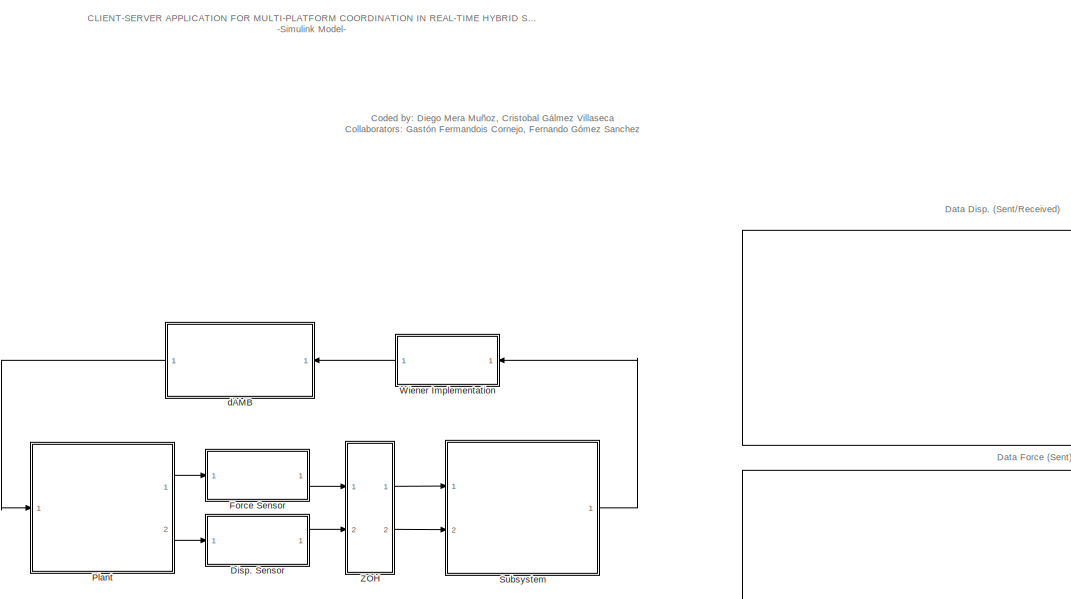
[diagram: root canvas - part 1/2, left side, full height]
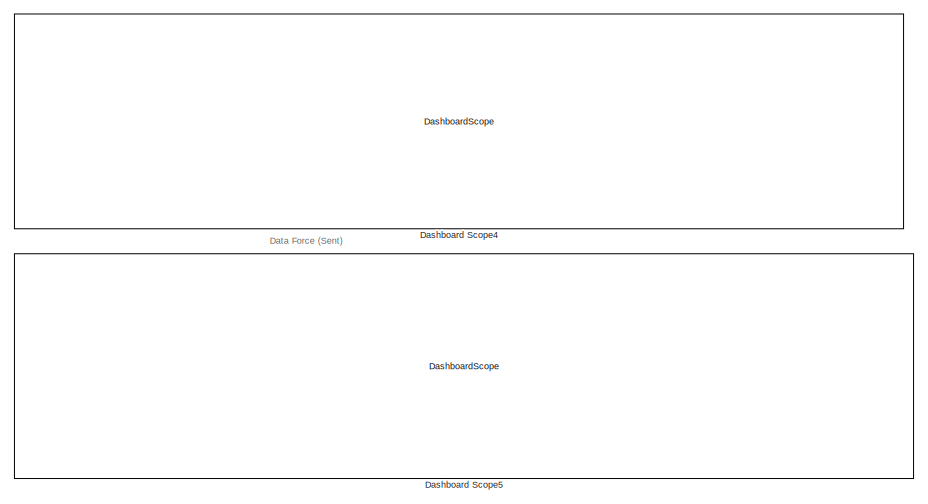
[diagram: root canvas - part 2/2, middle right region]
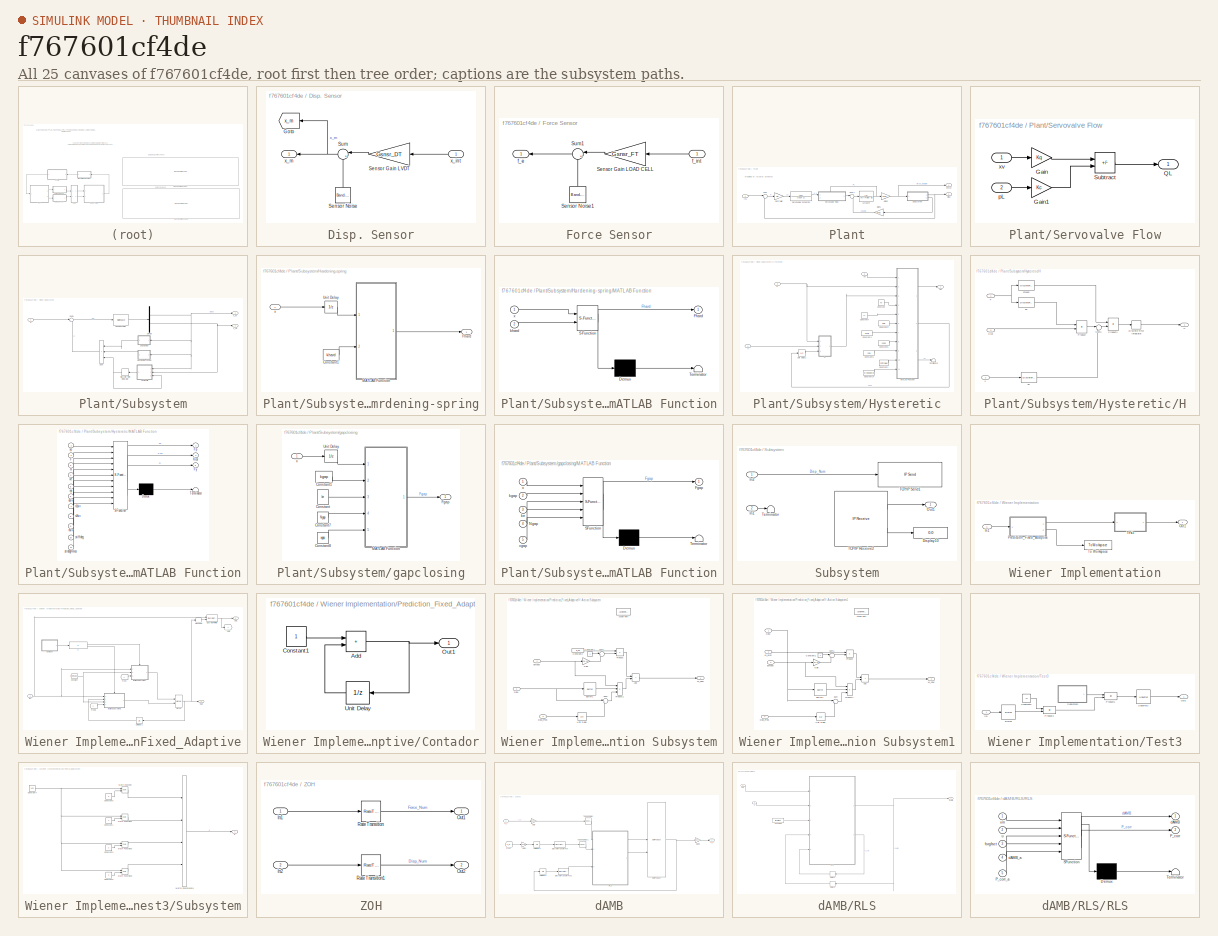
[diagram: thumbnail index - all 25 canvases of the model, root first then tree order]
MODEL slx_f767601cf4de
KIND model
CONFIG AbsTol = auto
CONFIG EnableMultiTasking = off
CONFIG FixedStep = dtfast
CONFIG InitFcn = clear('all');\ninitializeSimulation;
CONFIG MaxStep = auto
CONFIG MinStep = auto
CONFIG PreLoadFcn = initializeSimulation;
CONFIG RelTol = 1e-3
CONFIG SampleTimeConstraint = Unconstrained
CONFIG SolverName = ode8
CONFIG StartTime = 0.0
CONFIG StopTime = 31.2
BLOCK [DashboardScope] Dashboard Scope4
  Ymax = 5
  Ymin = -5
BLOCK [DashboardScope] Dashboard Scope5
  Ymax = 1e-5
  Ymin = -1.5e-5
BLOCK [SubSystem] Disp. Sensor
  NameLocation = top
  Ports = [1, 1]
  RequestExecContextInheritance = off
BLOCK [Goto] Disp. Sensor/Goto
  GotoTag = x_m
  NameLocation = top
  TagVisibility = global
BLOCK [Gain] Disp. Sensor/Sensor Gain LVDT
  Gain = Gsnsr_DT
  OutDataTypeStr = Inherit: Same as input
  ParamDataTypeStr = Inherit: Same as input
  SaturateOnIntegerOverflow = on
BLOCK [Reference] Disp. Sensor/Sensor Noise  REF=simulink/Sources/Band-Limited
White Noise
  NameLocation = right
  Ports = [0, 1]
  SourceBlock = simulink/Sources/Band-Limited\nWhite Noise
  SourceProductBaseCode = SL
  SourceType = Band-Limited White Noise.
BLOCK [Sum] Disp. Sensor/Sum
  InputSameDT = on
  Inputs = |++
  NameLocation = top
  OutDataTypeStr = Inherit: Same as first input
  Ports = [2, 1]
  SaturateOnIntegerOverflow = on
BLOCK [Inport] Disp. Sensor/x_int
BLOCK [Outport] Disp. Sensor/x_m
BLOCK [SubSystem] Force Sensor
  NameLocation = top
  Ports = [1, 1]
  RequestExecContextInheritance = off
BLOCK [Gain] Force Sensor/Sensor Gain LOAD CELL
  Gain = Gsnsr_FT
  OutDataTypeStr = Inherit: Same as input
  ParamDataTypeStr = Inherit: Same as input
  SaturateOnIntegerOverflow = on
BLOCK [Reference] Force Sensor/Sensor Noise1  REF=simulink/Sources/Band-Limited
White Noise
  NameLocation = right
  Ports = [0, 1]
  SourceBlock = simulink/Sources/Band-Limited\nWhite Noise
  SourceProductBaseCode = SL
  SourceType = Band-Limited White Noise.
BLOCK [Sum] Force Sensor/Sum1
  InputSameDT = on
  Inputs = |++
  NameLocation = top
  OutDataTypeStr = Inherit: Same as first input
  Ports = [2, 1]
  SaturateOnIntegerOverflow = on
BLOCK [Outport] Force Sensor/f_e 
BLOCK [Inport] Force Sensor/f_int
BLOCK [SubSystem] Plant
  Ports = [1, 2]
  RequestExecContextInheritance = off
BLOCK [TransferFcn] Plant/Actuator
  Denominator = [Vt/(4*Be) Cl]
BLOCK [Gain] Plant/Controller
  Gain = Kp
BLOCK [Outport] Plant/Disp
  Port = 2
BLOCK [Outport] Plant/Force
BLOCK [Gain] Plant/Gain1
  Gain = Area
  NameLocation = top
BLOCK [Gain] Plant/Gain2
  Gain = Area
BLOCK [Inport] Plant/In1
BLOCK [TransferFcn] Plant/Servovalve Dynamics
  Denominator = [tauv 1]
  Numerator = [kv]
BLOCK [SubSystem] Plant/Servovalve Flow
  PortSchema = {"entries":[{"content":{"sides":[{"content":{"connectorIds":["In1"]},"type":"ConnectorPlacement.EquallySpacedRectSide","uuid":"f3a8b7d5-d784-462c-bc82-60644eee5a75"},{"content":{"connectorIds":["Out1"],"side":"RIGHT"},"type":"ConnectorPlacement.EquallySpacedRectSide","uuid":"5e6f1f83-a632-4bc9-a761-43cae998e77f"},{"content":{"connectorIds":["In2"],"side":"TOP"},"type":"ConnectorPlacement.EquallySp...<+247ch>
  Ports = [2, 1]
  RequestExecContextInheritance = off
BLOCK [Gain] Plant/Servovalve Flow/Gain
  Gain = Kq
BLOCK [Gain] Plant/Servovalve Flow/Gain1
  Gain = Kc
BLOCK [Outport] Plant/Servovalve Flow/QL
BLOCK [Sum] Plant/Servovalve Flow/Subtract
  IconShape = rectangular
  Inputs = +-
  Ports = [2, 1]
BLOCK [Inport] Plant/Servovalve Flow/pL
  Port = 2
BLOCK [Inport] Plant/Servovalve Flow/xv
BLOCK [SubSystem] Plant/Subsystem
  Ports = [1, 2]
  RequestExecContextInheritance = off
BLOCK [Demux] Plant/Subsystem/Demux
  Outputs = 2
  Ports = [1, 2]
BLOCK [DiscreteIntegrator] Plant/Subsystem/Discrete-Time Integrator
  ICPrevOutput = DiscIntNeverNeededParam
  ICPrevScaledInput = DiscIntNeverNeededParam
  InitialConditionSetting = Auto
  Ports = [1, 1]
  SampleTime = -1
BLOCK [StateSpace] Plant/Subsystem/ESTRUCTURE
  A = ssAe
  B = ssBe
  C = ssCe
  D = ssDe
  InitialCondition = 0
  Ports = [1, 1]
BLOCK [Inport] Plant/Subsystem/F
BLOCK [SubSystem] Plant/Subsystem/Hardening-spring
  Ports = [1, 1]
  RequestExecContextInheritance = off
BLOCK [Constant] Plant/Subsystem/Hardening-spring/Constant1
  Value = khard
BLOCK [Outport] Plant/Subsystem/Hardening-spring/Fhard
  VectorParamsAs1DForOutWhenUnconnected = off
BLOCK [SubSystem] Plant/Subsystem/Hardening-spring/MATLAB Function
  ErrorFcn = Stateflow.Translate.translate
  PermitHierarchicalResolution = ExplicitOnly
  Ports = [2, 1]
  RequestExecContextInheritance = off
  SFBlockType = MATLAB Function
  TreatAsAtomicUnit = on
BLOCK [Demux] Plant/Subsystem/Hardening-spring/MATLAB Function/ Demux 
  Outputs = 1
  Ports = [1, 1]
BLOCK [S-Function] Plant/Subsystem/Hardening-spring/MATLAB Function/ SFunction 
  EnableBusSupport = on
  FunctionName = sf_sfun
  PortCounts = [2 2]
  Ports = [2, 2]
  SFcnIsStateOwnerBlock = off
  SFunctionDeploymentMode = off
  Tag = Stateflow S-Function 8
BLOCK [Terminator] Plant/Subsystem/Hardening-spring/MATLAB Function/ Terminator 
BLOCK [Outport] Plant/Subsystem/Hardening-spring/MATLAB Function/Fhard
  VectorParamsAs1DForOutWhenUnconnected = off
BLOCK [Inport] Plant/Subsystem/Hardening-spring/MATLAB Function/khard
  Port = 2
BLOCK [Inport] Plant/Subsystem/Hardening-spring/MATLAB Function/x
BLOCK [UnitDelay] Plant/Subsystem/Hardening-spring/Unit Delay
  HasFrameUpgradeWarning = on
  SampleTime = -1
BLOCK [Inport] Plant/Subsystem/Hardening-spring/x
BLOCK [SubSystem] Plant/Subsystem/Hysteretic
  Ports = [3, 1]
  RequestExecContextInheritance = off
BLOCK [Constant] Plant/Subsystem/Hysteretic/Constant
  Value = ke
BLOCK [Constant] Plant/Subsystem/Hysteretic/Constant1
  Value = stiffdeg
BLOCK [Constant] Plant/Subsystem/Hysteretic/Constant14
  Value = strdegHmos
BLOCK [Constant] Plant/Subsystem/Hysteretic/Constant3
  Value = asiv
BLOCK [Constant] Plant/Subsystem/Hysteretic/Constant4
  Value = n1siv
BLOCK [Constant] Plant/Subsystem/Hysteretic/Constant5
  Value = n2siv
BLOCK [Constant] Plant/Subsystem/Hysteretic/Constant6
  Value = nsiv
BLOCK [Constant] Plant/Subsystem/Hysteretic/Constant7
  Value = xy
BLOCK [Inport] Plant/Subsystem/Hysteretic/F
  Port = 3
BLOCK [Outport] Plant/Subsystem/Hysteretic/Fp
  VectorParamsAs1DForOutWhenUnconnected = off
BLOCK [SubSystem] Plant/Subsystem/Hysteretic/H
  Ports = [3, 1]
  RequestExecContextInheritance = off
BLOCK [DiscreteIntegrator] Plant/Subsystem/Hysteretic/H/Discrete-Time Integrator
  ICPrevOutput = DiscIntNeverNeededParam
  ICPrevScaledInput = DiscIntNeverNeededParam
  InitialConditionSetting = Auto
  IntegratorMethod = Accumulation: Trapezoidal
  Ports = [1, 1]
  SampleTime = -1
BLOCK [Inport] Plant/Subsystem/Hysteretic/H/F
BLOCK [DiscreteFir] Plant/Subsystem/Hysteretic/H/Fmean
  InputPortMap = u0
  OutputPortMap = o0
  Ports = [1, 1]
BLOCK [Outport] Plant/Subsystem/Hysteretic/H/H
  VectorParamsAs1DForOutWhenUnconnected = off
BLOCK [Inport] Plant/Subsystem/Hysteretic/H/Kcur 
  Port = 3
BLOCK [Product] Plant/Subsystem/Hysteretic/H/Product
  Inputs = */
  Ports = [2, 1]
BLOCK [Product] Plant/Subsystem/Hysteretic/H/Product1
  Ports = [2, 1]
BLOCK [Sum] Plant/Subsystem/Hysteretic/H/Sum1
  Inputs = |-+
  Ports = [2, 1]
BLOCK [DiscreteFir] Plant/Subsystem/Hysteretic/H/dF
  Coefficients = [1 -1]
  InputPortMap = u0
  OutputPortMap = o0
  Ports = [1, 1]
BLOCK [DiscreteFir] Plant/Subsystem/Hysteretic/H/dx
  Coefficients = [1 -1]
  InputPortMap = u0
  OutputPortMap = o0
  Ports = [1, 1]
BLOCK [Inport] Plant/Subsystem/Hysteretic/H/x
  Port = 2
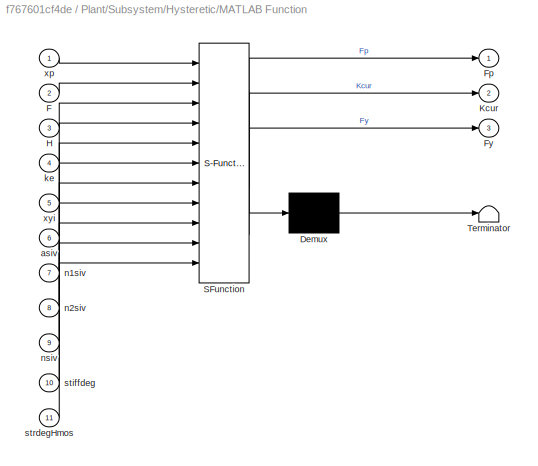
BLOCK [SubSystem] Plant/Subsystem/Hysteretic/MATLAB Function
  ErrorFcn = Stateflow.Translate.translate
  PermitHierarchicalResolution = ExplicitOnly
  Ports = [11, 3]
  RequestExecContextInheritance = off
  SFBlockType = MATLAB Function
  TreatAsAtomicUnit = on
BLOCK [Demux] Plant/Subsystem/Hysteretic/MATLAB Function/ Demux 
  Outputs = 1
  Ports = [1, 1]
BLOCK [S-Function] Plant/Subsystem/Hysteretic/MATLAB Function/ SFunction 
  EnableBusSupport = on
  FunctionName = sf_sfun
  PortCounts = [11 4]
  Ports = [11, 4]
  SFcnIsStateOwnerBlock = off
  SFunctionDeploymentMode = off
  Tag = Stateflow S-Function 9
BLOCK [Terminator] Plant/Subsystem/Hysteretic/MATLAB Function/ Terminator 
BLOCK [Inport] Plant/Subsystem/Hysteretic/MATLAB Function/F
  Port = 2
BLOCK [Outport] Plant/Subsystem/Hysteretic/MATLAB Function/Fp
  VectorParamsAs1DForOutWhenUnconnected = off
BLOCK [Outport] Plant/Subsystem/Hysteretic/MATLAB Function/Fy
  Port = 3
  VectorParamsAs1DForOutWhenUnconnected = off
BLOCK [Inport] Plant/Subsystem/Hysteretic/MATLAB Function/H
  Port = 3
BLOCK [Outport] Plant/Subsystem/Hysteretic/MATLAB Function/Kcur
  Port = 2
  VectorParamsAs1DForOutWhenUnconnected = off
BLOCK [Inport] Plant/Subsystem/Hysteretic/MATLAB Function/asiv
  Port = 6
BLOCK [Inport] Plant/Subsystem/Hysteretic/MATLAB Function/ke
  Port = 4
BLOCK [Inport] Plant/Subsystem/Hysteretic/MATLAB Function/n1siv
  Port = 7
BLOCK [Inport] Plant/Subsystem/Hysteretic/MATLAB Function/n2siv
  Port = 8
BLOCK [Inport] Plant/Subsystem/Hysteretic/MATLAB Function/nsiv
  Port = 9
BLOCK [Inport] Plant/Subsystem/Hysteretic/MATLAB Function/stiffdeg
  Port = 10
BLOCK [Inport] Plant/Subsystem/Hysteretic/MATLAB Function/strdegHmos
  Port = 11
BLOCK [Inport] Plant/Subsystem/Hysteretic/MATLAB Function/xp
BLOCK [Inport] Plant/Subsystem/Hysteretic/MATLAB Function/xyi
  Port = 5
BLOCK [Terminator] Plant/Subsystem/Hysteretic/Terminator
BLOCK [UnitDelay] Plant/Subsystem/Hysteretic/Unit Delay1
  HasFrameUpgradeWarning = on
  InitialCondition = ke
  SampleTime = -1
BLOCK [Inport] Plant/Subsystem/Hysteretic/x
BLOCK [Inport] Plant/Subsystem/Hysteretic/xp
  Port = 2
BLOCK [Sum] Plant/Subsystem/Sum
  IconShape = rectangular
  Inputs = |+++
  Ports = [3, 1]
BLOCK [Sum] Plant/Subsystem/Sum1
  Inputs = |+-
  Ports = [2, 1]
BLOCK [SubSystem] Plant/Subsystem/gapclosing
  Ports = [1, 1]
  RequestExecContextInheritance = off
BLOCK [Constant] Plant/Subsystem/gapclosing/Constant
  Value = ke
BLOCK [Constant] Plant/Subsystem/gapclosing/Constant1
  Value = kgap
BLOCK [Constant] Plant/Subsystem/gapclosing/Constant7
  Value = Ngap
BLOCK [Constant] Plant/Subsystem/gapclosing/Constant8
  Value = xgap
BLOCK [Outport] Plant/Subsystem/gapclosing/Fgap
  VectorParamsAs1DForOutWhenUnconnected = off
BLOCK [SubSystem] Plant/Subsystem/gapclosing/MATLAB Function
  ErrorFcn = Stateflow.Translate.translate
  PermitHierarchicalResolution = ExplicitOnly
  Ports = [5, 1]
  RequestExecContextInheritance = off
  SFBlockType = MATLAB Function
  TreatAsAtomicUnit = on
BLOCK [Demux] Plant/Subsystem/gapclosing/MATLAB Function/ Demux 
  Outputs = 1
  Ports = [1, 1]
BLOCK [S-Function] Plant/Subsystem/gapclosing/MATLAB Function/ SFunction 
  EnableBusSupport = on
  FunctionName = sf_sfun
  PortCounts = [5 2]
  Ports = [5, 2]
  SFcnIsStateOwnerBlock = off
  SFunctionDeploymentMode = off
  Tag = Stateflow S-Function 10
BLOCK [Terminator] Plant/Subsystem/gapclosing/MATLAB Function/ Terminator 
BLOCK [Outport] Plant/Subsystem/gapclosing/MATLAB Function/Fgap
  VectorParamsAs1DForOutWhenUnconnected = off
BLOCK [Inport] Plant/Subsystem/gapclosing/MATLAB Function/Ngap
  Port = 4
BLOCK [Inport] Plant/Subsystem/gapclosing/MATLAB Function/ke
  Port = 3
BLOCK [Inport] Plant/Subsystem/gapclosing/MATLAB Function/kgap
  Port = 2
BLOCK [Inport] Plant/Subsystem/gapclosing/MATLAB Function/x
BLOCK [Inport] Plant/Subsystem/gapclosing/MATLAB Function/xgap
  Port = 5
BLOCK [UnitDelay] Plant/Subsystem/gapclosing/Unit Delay
  HasFrameUpgradeWarning = on
  SampleTime = -1
BLOCK [Inport] Plant/Subsystem/gapclosing/x
BLOCK [Outport] Plant/Subsystem/x_m
  VectorParamsAs1DForOutWhenUnconnected = off
BLOCK [Outport] Plant/Subsystem/x_m s
  Port = 2
  VectorParamsAs1DForOutWhenUnconnected = off
BLOCK [Sum] Plant/Sum
  Inputs = |+-
  Ports = [2, 1]
BLOCK [Sum] Plant/Sum1
  Inputs = |+-
  Ports = [2, 1]
BLOCK [SubSystem] Subsystem
  Ports = [2, 1]
  RequestExecContextInheritance = off
BLOCK [Display] Subsystem/Display10
  Decimation = 1
  Ports = [1]
BLOCK [Inport] Subsystem/In1
  Port = 2
BLOCK [Inport] Subsystem/In2
BLOCK [Outport] Subsystem/Out1
BLOCK [Reference] Subsystem/TCP//IP Receive2  REF=raspberrypiNetworklib/TCP//IP Receive
  Ports = [0, 2]
  Priority = 2
  SourceBlock = raspberrypiNetworklib/TCP//IP Receive
  SourceProductBaseCode = RASPPI
  SourceType = codertarget.raspi.internal.RaspiTCPReceive
BLOCK [Reference] Subsystem/TCP//IP Send1  REF=raspberrypiNetworklib/TCP//IP Send
  Ports = [1]
  Priority = 1
  SourceBlock = raspberrypiNetworklib/TCP//IP Send
  SourceProductBaseCode = RASPPI
  SourceType = codertarget.raspi.internal.RaspiTCPSend
BLOCK [Terminator] Subsystem/Terminator
BLOCK [SubSystem] Wiener Implementation
  Ports = [1, 1]
  RequestExecContextInheritance = off
BLOCK [Inport] Wiener Implementation/In1
BLOCK [Outport] Wiener Implementation/Out1
BLOCK [SubSystem] Wiener Implementation/Prediction_Fixed_Adaptive
  Ports = [1, 2]
  RequestExecContextInheritance = off
BLOCK [Constant] Wiener Implementation/Prediction_Fixed_Adaptive/Constant
  Value = learningrate*adaptive
BLOCK [SubSystem] Wiener Implementation/Prediction_Fixed_Adaptive/Contador
  Ports = [0, 1]
  RequestExecContextInheritance = off
BLOCK [Sum] Wiener Implementation/Prediction_Fixed_Adaptive/Contador/Add
  IconShape = rectangular
  Ports = [2, 1]
BLOCK [Constant] Wiener Implementation/Prediction_Fixed_Adaptive/Contador/Constant1
BLOCK [Outport] Wiener Implementation/Prediction_Fixed_Adaptive/Contador/Out1
BLOCK [UnitDelay] Wiener Implementation/Prediction_Fixed_Adaptive/Contador/Unit Delay
  HasFrameUpgradeWarning = on
  NameLocation = top
  SampleTime = -1
BLOCK [DiscreteFir] Wiener Implementation/Prediction_Fixed_Adaptive/Discrete FIR Filter
  CoefSource = Input port
  InputPortMap = u0,u1
  OutputPortMap = o0
  Ports = [2, 1]
  SampleTime = dtsim
BLOCK [From] Wiener Implementation/Prediction_Fixed_Adaptive/From
BLOCK [From] Wiener Implementation/Prediction_Fixed_Adaptive/From1
BLOCK [Goto] Wiener Implementation/Prediction_Fixed_Adaptive/Goto
BLOCK [If] Wiener Implementation/Prediction_Fixed_Adaptive/If
  IfExpression = u1 <2
  Ports = [1, 2]
BLOCK [SubSystem] Wiener Implementation/Prediction_Fixed_Adaptive/If Action Subsystem
  Ports = [3, 1, 0, 0, 0, 0, 0, 1]
  RequestExecContextInheritance = off
  TreatAsAtomicUnit = on
BLOCK [ActionPort] Wiener Implementation/Prediction_Fixed_Adaptive/If Action Subsystem/Action Port
  ActionPortLabel = if(u1 <2)
BLOCK [Sum] Wiener Implementation/Prediction_Fixed_Adaptive/If Action Subsystem/Add
  IconShape = rectangular
  Ports = [2, 1]
BLOCK [Buffer] Wiener Implementation/Prediction_Fixed_Adaptive/If Action Subsystem/Buffer1
  N = 8
  OutputFrames = off
  V = 7
BLOCK [Constant] Wiener Implementation/Prediction_Fixed_Adaptive/If Action Subsystem/Constant1
BLOCK [Constant] Wiener Implementation/Prediction_Fixed_Adaptive/If Action Subsystem/Constant2
  Value = w_80
BLOCK [Inport] Wiener Implementation/Prediction_Fixed_Adaptive/If Action Subsystem/Disp
BLOCK [Inport] Wiener Implementation/Prediction_Fixed_Adaptive/If Action Subsystem/Disp_Pred
  Port = 3
BLOCK [Gain] Wiener Implementation/Prediction_Fixed_Adaptive/If Action Subsystem/Gain
  Gain = 1e-10
BLOCK [Product] Wiener Implementation/Prediction_Fixed_Adaptive/If Action Subsystem/Product
  Ports = [2, 1]
BLOCK [Product] Wiener Implementation/Prediction_Fixed_Adaptive/If Action Subsystem/Product1
  Inputs = 3
  Ports = [3, 1]
BLOCK [Sum] Wiener Implementation/Prediction_Fixed_Adaptive/If Action Subsystem/Sum
  Inputs = |+-
  Ports = [2, 1]
BLOCK [Sum] Wiener Implementation/Prediction_Fixed_Adaptive/If Action Subsystem/Sum1
  Inputs = |+-
  Ports = [2, 1]
BLOCK [UnitDelay] Wiener Implementation/Prediction_Fixed_Adaptive/If Action Subsystem/Unit Delay
  HasFrameUpgradeWarning = on
  NameLocation = top
  SampleTime = -1
BLOCK [Outport] Wiener Implementation/Prediction_Fixed_Adaptive/If Action Subsystem/W_new
BLOCK [Inport] Wiener Implementation/Prediction_Fixed_Adaptive/If Action Subsystem/lambda
  Port = 2
BLOCK [SubSystem] Wiener Implementation/Prediction_Fixed_Adaptive/If Action Subsystem1
  Ports = [4, 1, 0, 0, 0, 0, 0, 1]
  RequestExecContextInheritance = off
  TreatAsAtomicUnit = on
BLOCK [ActionPort] Wiener Implementation/Prediction_Fixed_Adaptive/If Action Subsystem1/Action Port
  ActionPortLabel = else
BLOCK [Sum] Wiener Implementation/Prediction_Fixed_Adaptive/If Action Subsystem1/Add
  IconShape = rectangular
  Ports = [2, 1]
BLOCK [Buffer] Wiener Implementation/Prediction_Fixed_Adaptive/If Action Subsystem1/Buffer1
  N = 8
  OutputFrames = off
  V = 7
BLOCK [Constant] Wiener Implementation/Prediction_Fixed_Adaptive/If Action Subsystem1/Constant1
BLOCK [Inport] Wiener Implementation/Prediction_Fixed_Adaptive/If Action Subsystem1/Disp
BLOCK [Inport] Wiener Implementation/Prediction_Fixed_Adaptive/If Action Subsystem1/Disp_Pred
  Port = 4
BLOCK [Gain] Wiener Implementation/Prediction_Fixed_Adaptive/If Action Subsystem1/Gain
  Gain = 1e-10
BLOCK [Product] Wiener Implementation/Prediction_Fixed_Adaptive/If Action Subsystem1/Product
  Ports = [2, 1]
BLOCK [Product] Wiener Implementation/Prediction_Fixed_Adaptive/If Action Subsystem1/Product1
  Inputs = 3
  Ports = [3, 1]
BLOCK [Sum] Wiener Implementation/Prediction_Fixed_Adaptive/If Action Subsystem1/Sum
  Inputs = |+-
  Ports = [2, 1]
BLOCK [Sum] Wiener Implementation/Prediction_Fixed_Adaptive/If Action Subsystem1/Sum1
  Inputs = |+-
  Ports = [2, 1]
BLOCK [UnitDelay] Wiener Implementation/Prediction_Fixed_Adaptive/If Action Subsystem1/Unit Delay
  HasFrameUpgradeWarning = on
  NameLocation = top
  SampleTime = -1
BLOCK [Outport] Wiener Implementation/Prediction_Fixed_Adaptive/If Action Subsystem1/W_new
BLOCK [Inport] Wiener Implementation/Prediction_Fixed_Adaptive/If Action Subsystem1/W_prev
  Port = 2
BLOCK [Inport] Wiener Implementation/Prediction_Fixed_Adaptive/If Action Subsystem1/lambda
  Port = 3
BLOCK [Inport] Wiener Implementation/Prediction_Fixed_Adaptive/In1
BLOCK [Merge] Wiener Implementation/Prediction_Fixed_Adaptive/Merge
  Ports = [2, 1]
BLOCK [Outport] Wiener Implementation/Prediction_Fixed_Adaptive/Out1
BLOCK [Outport] Wiener Implementation/Prediction_Fixed_Adaptive/Out2
  Port = 2
BLOCK [Reshape] Wiener Implementation/Prediction_Fixed_Adaptive/Reshape
  Ports = [1, 1]
BLOCK [UnitDelay] Wiener Implementation/Prediction_Fixed_Adaptive/Unit Delay1
  HasFrameUpgradeWarning = on
  SampleTime = -1
BLOCK [SubSystem] Wiener Implementation/Test3
  Ports = [1, 1]
  RequestExecContextInheritance = off
BLOCK [Buffer] Wiener Implementation/Test3/Buffer
  N = 4
  OutputFrames = off
  V = 3
BLOCK [Constant] Wiener Implementation/Test3/Constant6
  Value = V1
BLOCK [Inport] Wiener Implementation/Test3/In1
BLOCK [Outport] Wiener Implementation/Test3/Out1
BLOCK [Product] Wiener Implementation/Test3/Product1
  Multiplication = Matrix(*)
  Ports = [2, 1]
BLOCK [Product] Wiener Implementation/Test3/Product2
  Multiplication = Matrix(*)
  Ports = [2, 1]
BLOCK [SubSystem] Wiener Implementation/Test3/Subsystem
  Ports = [0, 1]
  RequestExecContextInheritance = off
BLOCK [Constant] Wiener Implementation/Test3/Subsystem/Constant1
BLOCK [Constant] Wiener Implementation/Test3/Subsystem/Constant3
  Value = 2
BLOCK [Constant] Wiener Implementation/Test3/Subsystem/Constant5
  Value = 3
BLOCK [Constant] Wiener Implementation/Test3/Subsystem/Constant6
  Value = 0
BLOCK [Constant] Wiener Implementation/Test3/Subsystem/Constant7
  Value = x02
BLOCK [Math] Wiener Implementation/Test3/Subsystem/Math Function
  Operator = pow
  Ports = [2, 1]
BLOCK [Math] Wiener Implementation/Test3/Subsystem/Math Function1
  Operator = pow
  Ports = [2, 1]
BLOCK [Math] Wiener Implementation/Test3/Subsystem/Math Function2
  Operator = pow
  Ports = [2, 1]
BLOCK [Math] Wiener Implementation/Test3/Subsystem/Math Function3
  Operator = pow
  Ports = [2, 1]
BLOCK [Concatenate] Wiener Implementation/Test3/Subsystem/Matrix Concatenate
  ConcatenateDimension = 2
  Mode = Multidimensional array
  NumInputs = 4
  Ports = [4, 1]
BLOCK [Outport] Wiener Implementation/Test3/Subsystem/a
BLOCK [Unbuffer] Wiener Implementation/Test3/Unbuffer2
  Ports = [1, 1]
BLOCK [ToWorkspace] Wiener Implementation/To Workspace
  FixptAsFi = on
  MaxDataPoints = inf
  Ports = [1]
  SampleTime = -1
  SaveFormat = Timeseries
  VariableName = adaptive_parameters
BLOCK [SubSystem] ZOH
  Ports = [2, 2]
  RequestExecContextInheritance = off
BLOCK [Inport] ZOH/In1
BLOCK [Inport] ZOH/In2
  Port = 2
BLOCK [Outport] ZOH/Out1
BLOCK [Outport] ZOH/Out2
  Port = 2
BLOCK [RateTransition] ZOH/Rate Transition
  OutPortSampleTime = dtsim
BLOCK [RateTransition] ZOH/Rate Transition1
  OutPortSampleTime = dtsim
BLOCK [SubSystem] dAMB
  NameLocation = top
  Ports = [1, 1]
  RequestExecContextInheritance = off
BLOCK [DiscreteTransferFcn] dAMB/Discrete Transfer Fcn
  Denominator = [denfilter]
  InputPortMap = u0
  Numerator = [numfilter]
  Ports = [1, 1]
BLOCK [DiscreteTransferFcn] dAMB/Discrete Transfer Fcn1
  Denominator = [denfilter]
  InputPortMap = u0
  Numerator = [numfilter]
  Ports = [1, 1]
BLOCK [DotProduct] dAMB/Dot Product
  OutDataTypeStr = Inherit: Inherit via internal rule
BLOCK [From] dAMB/From
  GotoTag = x_m
  NameLocation = top
  TagVisibility = global
BLOCK [Gain] dAMB/Gain
  Gain = 0.0254
BLOCK [Gain] dAMB/Gain1
  Gain = 0.0254
BLOCK [Gain] dAMB/Gain2
  Gain = 39.3701
BLOCK [SubSystem] dAMB/RLS
  Ports = [2, 1]
  RequestExecContextInheritance = off
BLOCK [Constant] dAMB/RLS/Constant6
  Value = forgfact
BLOCK [Delay] dAMB/RLS/Delay1
  DelayLength = 1
  InitialCondition = P_corr_i
  InputPortMap = u0
  Ports = [1, 1]
BLOCK [Delay] dAMB/RLS/Delay2
  DelayLength = 1
  InitialCondition = dAMB_i'
  InputPortMap = u0
  Ports = [1, 1]
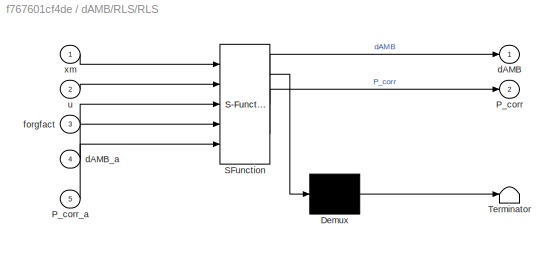
BLOCK [SubSystem] dAMB/RLS/RLS
  ErrorFcn = Stateflow.Translate.translate
  PermitHierarchicalResolution = ExplicitOnly
  Ports = [5, 2]
  RequestExecContextInheritance = off
  SFBlockType = MATLAB Function
  TreatAsAtomicUnit = on
BLOCK [Demux] dAMB/RLS/RLS/ Demux 
  Outputs = 1
  Ports = [1, 1]
BLOCK [S-Function] dAMB/RLS/RLS/ SFunction 
  EnableBusSupport = on
  FunctionName = sf_sfun
  PortCounts = [5 3]
  Ports = [5, 3]
  SFcnIsStateOwnerBlock = off
  SFunctionDeploymentMode = off
  Tag = Stateflow S-Function 2
BLOCK [Terminator] dAMB/RLS/RLS/ Terminator 
BLOCK [Outport] dAMB/RLS/RLS/P_corr
  Port = 2
  VectorParamsAs1DForOutWhenUnconnected = off
BLOCK [Inport] dAMB/RLS/RLS/P_corr_a
  Port = 5
BLOCK [Outport] dAMB/RLS/RLS/dAMB
  VectorParamsAs1DForOutWhenUnconnected = off
BLOCK [Inport] dAMB/RLS/RLS/dAMB_a
  Port = 4
BLOCK [Inport] dAMB/RLS/RLS/forgfact
  Port = 3
BLOCK [Inport] dAMB/RLS/RLS/u
  Port = 2
BLOCK [Inport] dAMB/RLS/RLS/xm
BLOCK [Outport] dAMB/RLS/dAMB
  VectorParamsAs1DForOutWhenUnconnected = off
BLOCK [Inport] dAMB/RLS/u
  Port = 2
BLOCK [Inport] dAMB/RLS/xm
BLOCK [Reference] dAMB/Tapped Delay  REF=simulink/Discrete/Tapped Delay
  Ports = [1, 1]
  SourceBlock = simulink/Discrete/Tapped Delay
  SourceProductBaseCode = SL
  SourceType = Tapped Delay Line
BLOCK [Reference] dAMB/Tapped Delay1  REF=simulink/Discrete/Tapped Delay
  Ports = [1, 1]
  SourceBlock = simulink/Discrete/Tapped Delay
  SourceProductBaseCode = SL
  SourceType = Tapped Delay Line
BLOCK [UnitDelay] dAMB/Unit Delay1
  HasFrameUpgradeWarning = on
  SampleTime = -1
BLOCK [UnitDelay] dAMB/Unit Delay3
  HasFrameUpgradeWarning = on
  SampleTime = -1
BLOCK [Outport] dAMB/x_c
  VectorParamsAs1DForOutWhenUnconnected = off
BLOCK [Inport] dAMB/x_t
ANNOTATION (root): CLIENT-SERVER APPLICATION FOR MULTI-PLATFORM COORDINATION IN REAL-TIME HYBRID SIMULATION TESTING -Simulink Model-
ANNOTATION (root): Coded by: Diego Mera Muñoz, Cristobal Gálmez Villaseca Collaborators: Gastón Fermandois Cornejo, Fernando Gómez Sanchez
ANNOTATION (root): Data Disp. (Sent/Received)
ANNOTATION (root): Data Force (Sent)
ANNOTATION Plant: Modeling of Actuator Dynamics
LINE Disp. Sensor/Sensor Gain LVDT:1 -> Disp. Sensor/Sum:1
LINE Disp. Sensor/Sensor Noise:1 -> Disp. Sensor/Sum:2
NET Disp. Sensor/Sum:1 -> Disp. Sensor/Goto:1, Disp. Sensor/x_m:1
LINE Disp. Sensor/x_int:1 -> Disp. Sensor/Sensor Gain LVDT:1
LINE Disp. Sensor:1 -> ZOH:2
LINE Force Sensor/Sensor Gain LOAD CELL:1 -> Force Sensor/Sum1:1
LINE Force Sensor/Sensor Noise1:1 -> Force Sensor/Sum1:2
LINE Force Sensor/Sum1:1 -> Force Sensor/f_e :1
LINE Force Sensor/f_int:1 -> Force Sensor/Sensor Gain LOAD CELL:1
LINE Force Sensor:1 -> ZOH:1
NET Plant/Actuator:1 -> Plant/Gain2:1, Plant/Servovalve Flow:2
LINE Plant/Controller:1 -> Plant/Servovalve Dynamics:1
LINE Plant/Gain1:1 -> Plant/Sum1:2
NET Plant/Gain2:1 -> Plant/Force:1, Plant/Subsystem:1
LINE Plant/In1:1 -> Plant/Sum:1
LINE Plant/Servovalve Dynamics:1 -> Plant/Servovalve Flow:1
LINE Plant/Servovalve Flow/Gain1:1 -> Plant/Servovalve Flow/Subtract:2
LINE Plant/Servovalve Flow/Gain:1 -> Plant/Servovalve Flow/Subtract:1
LINE Plant/Servovalve Flow/Subtract:1 -> Plant/Servovalve Flow/QL:1
LINE Plant/Servovalve Flow/pL:1 -> Plant/Servovalve Flow/Gain1:1
LINE Plant/Servovalve Flow/xv:1 -> Plant/Servovalve Flow/Gain:1
LINE Plant/Servovalve Flow:1 -> Plant/Sum1:1
NET Plant/Subsystem/Demux:1 -> Plant/Subsystem/Hardening-spring:1, Plant/Subsystem/Hysteretic:1, Plant/Subsystem/gapclosing:1, Plant/Subsystem/x_m:1
NET Plant/Subsystem/Demux:2 -> Plant/Subsystem/Hysteretic:2, Plant/Subsystem/x_m s:1
NET Plant/Subsystem/Discrete-Time Integrator:1 -> Plant/Subsystem/Hysteretic:3, Plant/Subsystem/Sum:3
LINE Plant/Subsystem/ESTRUCTURE:1 -> Plant/Subsystem/Demux:1
LINE Plant/Subsystem/F:1 -> Plant/Subsystem/Sum1:1
LINE Plant/Subsystem/Hardening-spring/Constant1:1 -> Plant/Subsystem/Hardening-spring/MATLAB Function:2
LINE Plant/Subsystem/Hardening-spring/MATLAB Function:1 -> Plant/Subsystem/Hardening-spring/Fhard:1
LINE Plant/Subsystem/Hardening-spring/Unit Delay:1 -> Plant/Subsystem/Hardening-spring/MATLAB Function:1
LINE Plant/Subsystem/Hardening-spring/x:1 -> Plant/Subsystem/Hardening-spring/Unit Delay:1
LINE Plant/Subsystem/Hardening-spring:1 -> Plant/Subsystem/Sum:2
LINE Plant/Subsystem/Hysteretic/Constant14:1 -> Plant/Subsystem/Hysteretic/MATLAB Function:11
LINE Plant/Subsystem/Hysteretic/Constant1:1 -> Plant/Subsystem/Hysteretic/MATLAB Function:10
LINE Plant/Subsystem/Hysteretic/Constant3:1 -> Plant/Subsystem/Hysteretic/MATLAB Function:6
LINE Plant/Subsystem/Hysteretic/Constant4:1 -> Plant/Subsystem/Hysteretic/MATLAB Function:7
LINE Plant/Subsystem/Hysteretic/Constant5:1 -> Plant/Subsystem/Hysteretic/MATLAB Function:8
LINE Plant/Subsystem/Hysteretic/Constant6:1 -> Plant/Subsystem/Hysteretic/MATLAB Function:9
LINE Plant/Subsystem/Hysteretic/Constant7:1 -> Plant/Subsystem/Hysteretic/MATLAB Function:5
LINE Plant/Subsystem/Hysteretic/Constant:1 -> Plant/Subsystem/Hysteretic/MATLAB Function:4
NET Plant/Subsystem/Hysteretic/F:1 -> Plant/Subsystem/Hysteretic/H:1, Plant/Subsystem/Hysteretic/MATLAB Function:2
LINE Plant/Subsystem/Hysteretic/H/Discrete-Time Integrator:1 -> Plant/Subsystem/Hysteretic/H/H:1
NET Plant/Subsystem/Hysteretic/H/F:1 -> Plant/Subsystem/Hysteretic/H/Fmean:1, Plant/Subsystem/Hysteretic/H/dF:1
LINE Plant/Subsystem/Hysteretic/H/Fmean:1 -> Plant/Subsystem/Hysteretic/H/Product1:1
LINE Plant/Subsystem/Hysteretic/H/Kcur :1 -> Plant/Subsystem/Hysteretic/H/Product:2
LINE Plant/Subsystem/Hysteretic/H/Product1:1 -> Plant/Subsystem/Hysteretic/H/Discrete-Time Integrator:1
LINE Plant/Subsystem/Hysteretic/H/Product:1 -> Plant/Subsystem/Hysteretic/H/Sum1:1
LINE Plant/Subsystem/Hysteretic/H/Sum1:1 -> Plant/Subsystem/Hysteretic/H/Product1:2
LINE Plant/Subsystem/Hysteretic/H/dF:1 -> Plant/Subsystem/Hysteretic/H/Product:1
LINE Plant/Subsystem/Hysteretic/H/dx:1 -> Plant/Subsystem/Hysteretic/H/Sum1:2
LINE Plant/Subsystem/Hysteretic/H/x:1 -> Plant/Subsystem/Hysteretic/H/dx:1
LINE Plant/Subsystem/Hysteretic/H:1 -> Plant/Subsystem/Hysteretic/MATLAB Function:3
LINE Plant/Subsystem/Hysteretic/MATLAB Function:1 -> Plant/Subsystem/Hysteretic/Fp:1
LINE Plant/Subsystem/Hysteretic/MATLAB Function:2 -> Plant/Subsystem/Hysteretic/Unit Delay1:1
LINE Plant/Subsystem/Hysteretic/MATLAB Function:3 -> Plant/Subsystem/Hysteretic/Terminator:1
LINE Plant/Subsystem/Hysteretic/Unit Delay1:1 -> Plant/Subsystem/Hysteretic/H:3
LINE Plant/Subsystem/Hysteretic/x:1 -> Plant/Subsystem/Hysteretic/H:2
LINE Plant/Subsystem/Hysteretic/xp:1 -> Plant/Subsystem/Hysteretic/MATLAB Function:1
LINE Plant/Subsystem/Hysteretic:1 -> Plant/Subsystem/Discrete-Time Integrator:1
LINE Plant/Subsystem/Sum1:1 -> Plant/Subsystem/ESTRUCTURE:1
LINE Plant/Subsystem/Sum:1 -> Plant/Subsystem/Sum1:2
LINE Plant/Subsystem/gapclosing/Constant1:1 -> Plant/Subsystem/gapclosing/MATLAB Function:2
LINE Plant/Subsystem/gapclosing/Constant7:1 -> Plant/Subsystem/gapclosing/MATLAB Function:4
LINE Plant/Subsystem/gapclosing/Constant8:1 -> Plant/Subsystem/gapclosing/MATLAB Function:5
LINE Plant/Subsystem/gapclosing/Constant:1 -> Plant/Subsystem/gapclosing/MATLAB Function:3
LINE Plant/Subsystem/gapclosing/MATLAB Function:1 -> Plant/Subsystem/gapclosing/Fgap:1
LINE Plant/Subsystem/gapclosing/Unit Delay:1 -> Plant/Subsystem/gapclosing/MATLAB Function:1
LINE Plant/Subsystem/gapclosing/x:1 -> Plant/Subsystem/gapclosing/Unit Delay:1
LINE Plant/Subsystem/gapclosing:1 -> Plant/Subsystem/Sum:1
NET Plant/Subsystem:1 -> Plant/Disp:1, Plant/Sum:2
LINE Plant/Subsystem:2 -> Plant/Gain1:1
LINE Plant/Sum1:1 -> Plant/Actuator:1
LINE Plant/Sum:1 -> Plant/Controller:1
LINE Plant:1 -> Force Sensor:1
LINE Plant:2 -> Disp. Sensor:1
LINE Subsystem/In1:1 -> Subsystem/Terminator:1
LINE Subsystem/In2:1 -> Subsystem/TCP//IP Send1:1
LINE Subsystem/TCP//IP Receive2:1 -> Subsystem/Out1:1
LINE Subsystem/TCP//IP Receive2:2 -> Subsystem/Display10:1
LINE Subsystem:1 -> Wiener Implementation:1
LINE Wiener Implementation/In1:1 -> Wiener Implementation/Prediction_Fixed_Adaptive:1
NET Wiener Implementation/Prediction_Fixed_Adaptive/Constant:1 -> Wiener Implementation/Prediction_Fixed_Adaptive/If Action Subsystem1:3, Wiener Implementation/Prediction_Fixed_Adaptive/If Action Subsystem:2
NET Wiener Implementation/Prediction_Fixed_Adaptive/Contador/Add:1 -> Wiener Implementation/Prediction_Fixed_Adaptive/Contador/Out1:1, Wiener Implementation/Prediction_Fixed_Adaptive/Contador/Unit Delay:1
LINE Wiener Implementation/Prediction_Fixed_Adaptive/Contador/Constant1:1 -> Wiener Implementation/Prediction_Fixed_Adaptive/Contador/Add:1
LINE Wiener Implementation/Prediction_Fixed_Adaptive/Contador/Unit Delay:1 -> Wiener Implementation/Prediction_Fixed_Adaptive/Contador/Add:2
LINE Wiener Implementation/Prediction_Fixed_Adaptive/Contador:1 -> Wiener Implementation/Prediction_Fixed_Adaptive/If:1
NET Wiener Implementation/Prediction_Fixed_Adaptive/Discrete FIR Filter:1 -> Wiener Implementation/Prediction_Fixed_Adaptive/Goto:1, Wiener Implementation/Prediction_Fixed_Adaptive/Out1:1
LINE Wiener Implementation/Prediction_Fixed_Adaptive/From1:1 -> Wiener Implementation/Prediction_Fixed_Adaptive/If Action Subsystem1:4
LINE Wiener Implementation/Prediction_Fixed_Adaptive/From:1 -> Wiener Implementation/Prediction_Fixed_Adaptive/If Action Subsystem:3
LINE Wiener Implementation/Prediction_Fixed_Adaptive/If Action Subsystem/Add:1 -> Wiener Implementation/Prediction_Fixed_Adaptive/If Action Subsystem/W_new:1
LINE Wiener Implementation/Prediction_Fixed_Adaptive/If Action Subsystem/Buffer1:1 -> Wiener Implementation/Prediction_Fixed_Adaptive/If Action Subsystem/Product1:2
LINE Wiener Implementation/Prediction_Fixed_Adaptive/If Action Subsystem/Constant1:1 -> Wiener Implementation/Prediction_Fixed_Adaptive/If Action Subsystem/Sum1:1
LINE Wiener Implementation/Prediction_Fixed_Adaptive/If Action Subsystem/Constant2:1 -> Wiener Implementation/Prediction_Fixed_Adaptive/If Action Subsystem/Product:1
NET Wiener Implementation/Prediction_Fixed_Adaptive/If Action Subsystem/Disp:1 -> Wiener Implementation/Prediction_Fixed_Adaptive/If Action Subsystem/Buffer1:1, Wiener Implementation/Prediction_Fixed_Adaptive/If Action Subsystem/Sum:1
LINE Wiener Implementation/Prediction_Fixed_Adaptive/If Action Subsystem/Disp_Pred:1 -> Wiener Implementation/Prediction_Fixed_Adaptive/If Action Subsystem/Unit Delay:1
LINE Wiener Implementation/Prediction_Fixed_Adaptive/If Action Subsystem/Gain:1 -> Wiener Implementation/Prediction_Fixed_Adaptive/If Action Subsystem/Sum1:2
LINE Wiener Implementation/Prediction_Fixed_Adaptive/If Action Subsystem/Product1:1 -> Wiener Implementation/Prediction_Fixed_Adaptive/If Action Subsystem/Add:2
LINE Wiener Implementation/Prediction_Fixed_Adaptive/If Action Subsystem/Product:1 -> Wiener Implementation/Prediction_Fixed_Adaptive/If Action Subsystem/Add:1
LINE Wiener Implementation/Prediction_Fixed_Adaptive/If Action Subsystem/Sum1:1 -> Wiener Implementation/Prediction_Fixed_Adaptive/If Action Subsystem/Product:2
LINE Wiener Implementation/Prediction_Fixed_Adaptive/If Action Subsystem/Sum:1 -> Wiener Implementation/Prediction_Fixed_Adaptive/If Action Subsystem/Product1:3
LINE Wiener Implementation/Prediction_Fixed_Adaptive/If Action Subsystem/Unit Delay:1 -> Wiener Implementation/Prediction_Fixed_Adaptive/If Action Subsystem/Sum:2
NET Wiener Implementation/Prediction_Fixed_Adaptive/If Action Subsystem/lambda:1 -> Wiener Implementation/Prediction_Fixed_Adaptive/If Action Subsystem/Gain:1, Wiener Implementation/Prediction_Fixed_Adaptive/If Action Subsystem/Product1:1
LINE Wiener Implementation/Prediction_Fixed_Adaptive/If Action Subsystem1/Add:1 -> Wiener Implementation/Prediction_Fixed_Adaptive/If Action Subsystem1/W_new:1
LINE Wiener Implementation/Prediction_Fixed_Adaptive/If Action Subsystem1/Buffer1:1 -> Wiener Implementation/Prediction_Fixed_Adaptive/If Action Subsystem1/Product1:2
LINE Wiener Implementation/Prediction_Fixed_Adaptive/If Action Subsystem1/Constant1:1 -> Wiener Implementation/Prediction_Fixed_Adaptive/If Action Subsystem1/Sum1:1
NET Wiener Implementation/Prediction_Fixed_Adaptive/If Action Subsystem1/Disp:1 -> Wiener Implementation/Prediction_Fixed_Adaptive/If Action Subsystem1/Buffer1:1, Wiener Implementation/Prediction_Fixed_Adaptive/If Action Subsystem1/Sum:1
LINE Wiener Implementation/Prediction_Fixed_Adaptive/If Action Subsystem1/Disp_Pred:1 -> Wiener Implementation/Prediction_Fixed_Adaptive/If Action Subsystem1/Unit Delay:1
LINE Wiener Implementation/Prediction_Fixed_Adaptive/If Action Subsystem1/Gain:1 -> Wiener Implementation/Prediction_Fixed_Adaptive/If Action Subsystem1/Sum1:2
LINE Wiener Implementation/Prediction_Fixed_Adaptive/If Action Subsystem1/Product1:1 -> Wiener Implementation/Prediction_Fixed_Adaptive/If Action Subsystem1/Add:2
LINE Wiener Implementation/Prediction_Fixed_Adaptive/If Action Subsystem1/Product:1 -> Wiener Implementation/Prediction_Fixed_Adaptive/If Action Subsystem1/Add:1
LINE Wiener Implementation/Prediction_Fixed_Adaptive/If Action Subsystem1/Sum1:1 -> Wiener Implementation/Prediction_Fixed_Adaptive/If Action Subsystem1/Product:2
LINE Wiener Implementation/Prediction_Fixed_Adaptive/If Action Subsystem1/Sum:1 -> Wiener Implementation/Prediction_Fixed_Adaptive/If Action Subsystem1/Product1:3
LINE Wiener Implementation/Prediction_Fixed_Adaptive/If Action Subsystem1/Unit Delay:1 -> Wiener Implementation/Prediction_Fixed_Adaptive/If Action Subsystem1/Sum:2
LINE Wiener Implementation/Prediction_Fixed_Adaptive/If Action Subsystem1/W_prev:1 -> Wiener Implementation/Prediction_Fixed_Adaptive/If Action Subsystem1/Product:1
NET Wiener Implementation/Prediction_Fixed_Adaptive/If Action Subsystem1/lambda:1 -> Wiener Implementation/Prediction_Fixed_Adaptive/If Action Subsystem1/Gain:1, Wiener Implementation/Prediction_Fixed_Adaptive/If Action Subsystem1/Product1:1
LINE Wiener Implementation/Prediction_Fixed_Adaptive/If Action Subsystem1:1 -> Wiener Implementation/Prediction_Fixed_Adaptive/Merge:2
LINE Wiener Implementation/Prediction_Fixed_Adaptive/If Action Subsystem:1 -> Wiener Implementation/Prediction_Fixed_Adaptive/Merge:1
LINE Wiener Implementation/Prediction_Fixed_Adaptive/If:1 -> Wiener Implementation/Prediction_Fixed_Adaptive/If Action Subsystem:ifaction
LINE Wiener Implementation/Prediction_Fixed_Adaptive/If:2 -> Wiener Implementation/Prediction_Fixed_Adaptive/If Action Subsystem1:ifaction
NET Wiener Implementation/Prediction_Fixed_Adaptive/In1:1 -> Wiener Implementation/Prediction_Fixed_Adaptive/Discrete FIR Filter:1, Wiener Implementation/Prediction_Fixed_Adaptive/If Action Subsystem1:1, Wiener Implementation/Prediction_Fixed_Adaptive/If Action Subsystem:1
NET Wiener Implementation/Prediction_Fixed_Adaptive/Merge:1 -> Wiener Implementation/Prediction_Fixed_Adaptive/Out2:1, Wiener Implementation/Prediction_Fixed_Adaptive/Reshape:1, Wiener Implementation/Prediction_Fixed_Adaptive/Unit Delay1:1
LINE Wiener Implementation/Prediction_Fixed_Adaptive/Reshape:1 -> Wiener Implementation/Prediction_Fixed_Adaptive/Discrete FIR Filter:2
LINE Wiener Implementation/Prediction_Fixed_Adaptive/Unit Delay1:1 -> Wiener Implementation/Prediction_Fixed_Adaptive/If Action Subsystem1:2
LINE Wiener Implementation/Prediction_Fixed_Adaptive:1 -> Wiener Implementation/Test3:1
LINE Wiener Implementation/Prediction_Fixed_Adaptive:2 -> Wiener Implementation/To Workspace:1
LINE Wiener Implementation/Test3/Buffer:1 -> Wiener Implementation/Test3/Product2:2
LINE Wiener Implementation/Test3/Constant6:1 -> Wiener Implementation/Test3/Product2:1
LINE Wiener Implementation/Test3/In1:1 -> Wiener Implementation/Test3/Buffer:1
LINE Wiener Implementation/Test3/Product1:1 -> Wiener Implementation/Test3/Unbuffer2:1
LINE Wiener Implementation/Test3/Product2:1 -> Wiener Implementation/Test3/Product1:2
LINE Wiener Implementation/Test3/Subsystem/Constant1:1 -> Wiener Implementation/Test3/Subsystem/Math Function1:2
LINE Wiener Implementation/Test3/Subsystem/Constant3:1 -> Wiener Implementation/Test3/Subsystem/Math Function2:2
LINE Wiener Implementation/Test3/Subsystem/Constant5:1 -> Wiener Implementation/Test3/Subsystem/Math Function3:2
LINE Wiener Implementation/Test3/Subsystem/Constant6:1 -> Wiener Implementation/Test3/Subsystem/Math Function:2
NET Wiener Implementation/Test3/Subsystem/Constant7:1 -> Wiener Implementation/Test3/Subsystem/Math Function1:1, Wiener Implementation/Test3/Subsystem/Math Function2:1, Wiener Implementation/Test3/Subsystem/Math Function3:1, Wiener Implementation/Test3/Subsystem/Math Function:1
LINE Wiener Implementation/Test3/Subsystem/Math Function1:1 -> Wiener Implementation/Test3/Subsystem/Matrix Concatenate:2
LINE Wiener Implementation/Test3/Subsystem/Math Function2:1 -> Wiener Implementation/Test3/Subsystem/Matrix Concatenate:3
LINE Wiener Implementation/Test3/Subsystem/Math Function3:1 -> Wiener Implementation/Test3/Subsystem/Matrix Concatenate:4
LINE Wiener Implementation/Test3/Subsystem/Math Function:1 -> Wiener Implementation/Test3/Subsystem/Matrix Concatenate:1
LINE Wiener Implementation/Test3/Subsystem/Matrix Concatenate:1 -> Wiener Implementation/Test3/Subsystem/a:1
LINE Wiener Implementation/Test3/Subsystem:1 -> Wiener Implementation/Test3/Product1:1
LINE Wiener Implementation/Test3/Unbuffer2:1 -> Wiener Implementation/Test3/Out1:1
LINE Wiener Implementation/Test3:1 -> Wiener Implementation/Out1:1
LINE Wiener Implementation:1 -> dAMB:1
LINE ZOH/In1:1 -> ZOH/Rate Transition:1
LINE ZOH/In2:1 -> ZOH/Rate Transition1:1
LINE ZOH/Rate Transition1:1 -> ZOH/Out2:1
LINE ZOH/Rate Transition:1 -> ZOH/Out1:1
LINE ZOH:1 -> Subsystem:1
LINE ZOH:2 -> Subsystem:2
LINE dAMB/Discrete Transfer Fcn1:1 -> dAMB/RLS:2
LINE dAMB/Discrete Transfer Fcn:1 -> dAMB/Tapped Delay1:1
NET dAMB/Dot Product:1 -> dAMB/Gain2:1, dAMB/Unit Delay1:1
LINE dAMB/From:1 -> dAMB/Gain1:1
LINE dAMB/Gain1:1 -> dAMB/Unit Delay3:1
LINE dAMB/Gain2:1 -> dAMB/x_c:1
LINE dAMB/Gain:1 -> dAMB/Tapped Delay:1
LINE dAMB/RLS/Constant6:1 -> dAMB/RLS/RLS:3
LINE dAMB/RLS/Delay1:1 -> dAMB/RLS/RLS:5
LINE dAMB/RLS/Delay2:1 -> dAMB/RLS/RLS:4
NET dAMB/RLS/RLS:1 -> dAMB/RLS/Delay2:1, dAMB/RLS/dAMB:1
LINE dAMB/RLS/RLS:2 -> dAMB/RLS/Delay1:1
LINE dAMB/RLS/u:1 -> dAMB/RLS/RLS:2
LINE dAMB/RLS/xm:1 -> dAMB/RLS/RLS:1
LINE dAMB/RLS:1 -> dAMB/Dot Product:2
LINE dAMB/Tapped Delay1:1 -> dAMB/RLS:1
LINE dAMB/Tapped Delay:1 -> dAMB/Dot Product:1
LINE dAMB/Unit Delay1:1 -> dAMB/Discrete Transfer Fcn1:1
LINE dAMB/Unit Delay3:1 -> dAMB/Discrete Transfer Fcn:1
LINE dAMB/x_t:1 -> dAMB/Gain:1
LINE dAMB:1 -> Plant:1
note: NET lines group one-source signal fan-out (src -> all destinations, sorted); 1:1 wires keep LINE
CHART dAMB/RLS/RLS states=1 transitions=1
  STATE_LABEL 'eML_blk_kernel()'
  STATE_LABEL "SCRIPT:\nfunction [dAMB,P_corr]  = fcn(xm,u,forgfact,dAMB_a,P_corr_a)             \n        error=(u-dAMB_a'*xm);\n        phik=P_corr_a*xm/(forgfact+xm'*P_corr_a*xm);\n        P_corr=(P_corr_a-phik*xm'*P_corr_a)/forgfact;\n        \n        dAMB=dAMB_a+phik*error;\nend\n       "
CHART Plant/Subsystem/Hardening-spring/MATLAB Function states=1 transitions=1
  STATE_LABEL 'eML_blk_kernel()'
  STATE_LABEL 'SCRIPT:\nfunction Fhard  = hardening(x,khard)\nFhard=khard*(x^3);\n\n'
CHART Plant/Subsystem/Hysteretic/MATLAB Function states=1 transitions=1
  STATE_LABEL 'eML_blk_kernel()'
  STATE_LABEL 'SCRIPT:\nfunction [Fp,Kcur,Fy] = stiffdegradation(xp,F,H,ke,xyi,asiv,n1siv,n2siv,nsiv,stiffdeg,strdegHmos)\n\nKcur=((exp(-stiffdeg*H))-asiv)*ke; \nFyi=(1-asiv)*ke*xyi;\nFy=Fyi*(1+strdegHmos*H)^-1;\nif Fy<=0.01*Fyi\n    Fy=Fyi*0.01;\nend\nKhyst=Kcur*(1-abs(F/Fy)^(nsiv)*(n1siv*sign(F*xp)+n2siv));\nFp=Khyst*xp;'
CHART Plant/Subsystem/gapclosing/MATLAB Function states=1 transitions=1
  STATE_LABEL 'eML_blk_kernel()'
  STATE_LABEL 'SCRIPT:\nfunction Fgap  = gapclosing(x,kgap,ke,Ngap,xgap)\nif abs(x)<=xgap\n    Fgap=0;\nelse\n    Fgap=kgap*ke*Ngap*(abs(x)-xgap)^(Ngap-1)*x;\nend\n\n'
CHART  states=0 transitions=0
CHART  states=0 transitions=0
CHART  states=0 transitions=0
CHART  states=0 transitions=0
